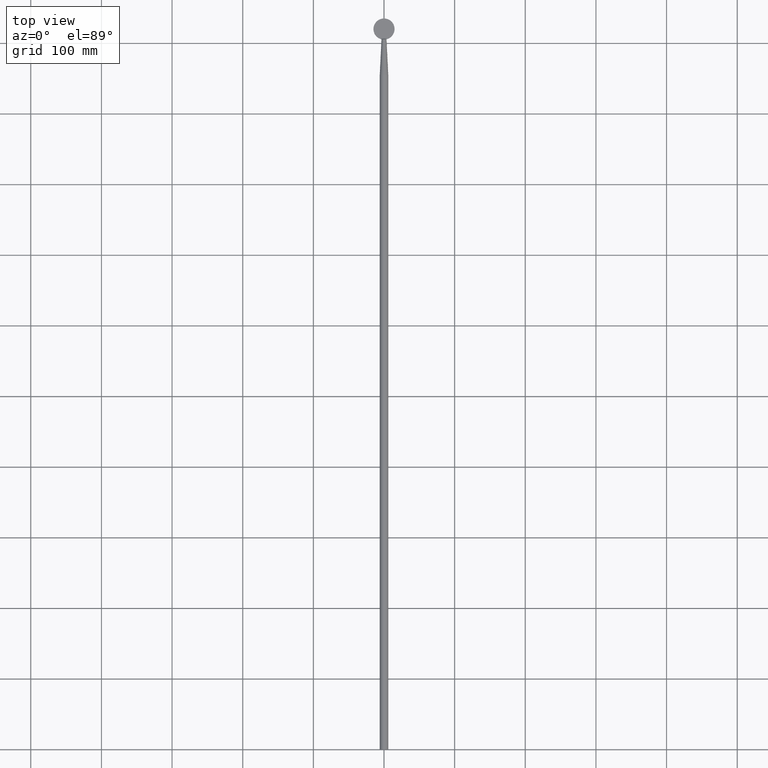
[diagram: clean part render]
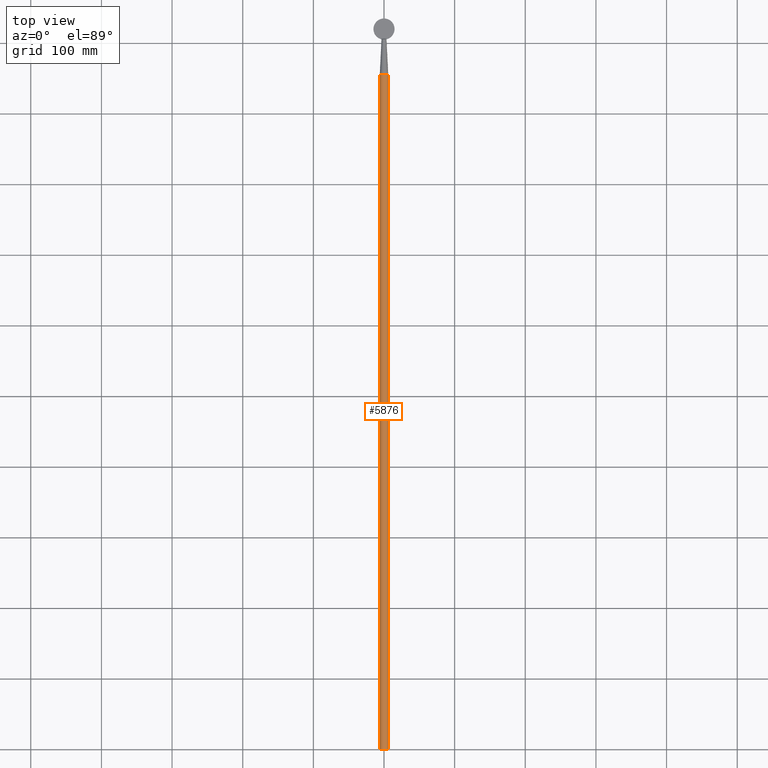
[diagram: same view with one face highlighted and labeled with its STEP entity id]
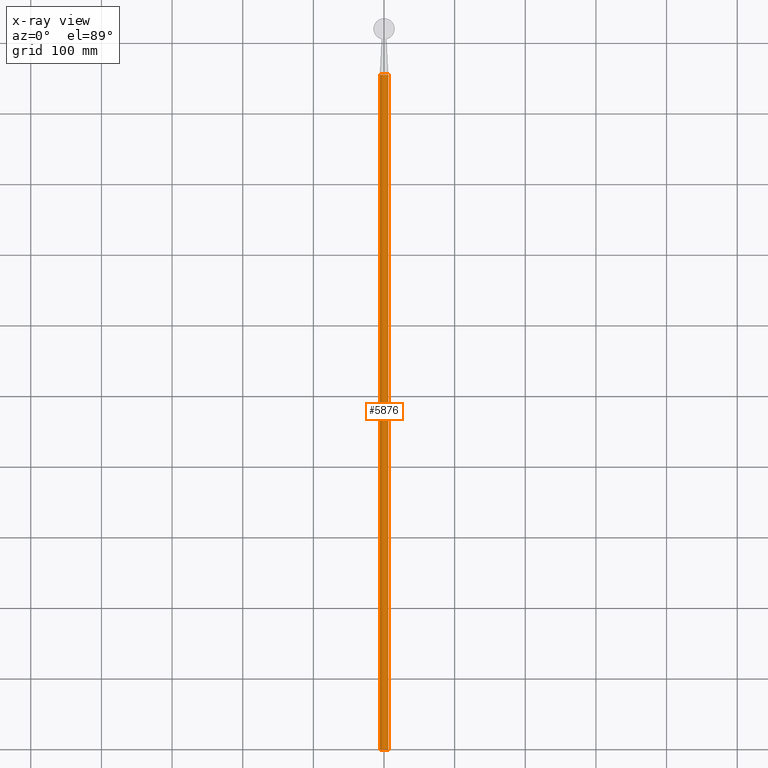
[diagram: x-ray of the same camera — body ghosted, the highlighted face saturated]
A machine part, top view. The second image highlights one B-rep face of the part: STEP entity #5876.
The next image is the same camera in x-ray: the body ghosted, the highlighted face saturated — about 0% of this face is hidden behind the body in this view.
In plain terms, the highlighted cylindrical surface (bore or boss wall) has radius 6 mm, axis along (-0, -1, -0).
Its self-contained STEP definition (entity closure, byte-faithful):
#269 = VERTEX_POINT ( 'NONE', #8607 ) ;
#700 = EDGE_LOOP ( 'NONE', ( #8321 ) ) ;
#1271 = EDGE_CURVE ( 'NONE', #269, #269, #5900, .T. ) ;
#2961 = CYLINDRICAL_SURFACE ( 'NONE', #5762, 6.000000000000000000 ) ;
#3065 = CARTESIAN_POINT ( 'NONE',  ( 0.000000000000000000, 1005.414047854185128, 0.000000000000000000 ) ) ;
#3812 = CARTESIAN_POINT ( 'NONE',  ( 0.000000000000000000, 0.000000000000000000, 0.000000000000000000 ) ) ;
#4160 = CARTESIAN_POINT ( 'NONE',  ( 0.000000000000000000, 955.0000000000000000, 0.000000000000000000 ) ) ;
#4405 = EDGE_LOOP ( 'NONE', ( #5898 ) ) ;
#4506 = CARTESIAN_POINT ( 'NONE',  ( 0.000000000000000000, 955.0000000000000000, -6.000000000000000000 ) ) ;
#4616 = VERTEX_POINT ( 'NONE', #4506 ) ;
#4885 = AXIS2_PLACEMENT_3D ( 'NONE', #3812, #6102, #6927 ) ;
#5762 = AXIS2_PLACEMENT_3D ( 'NONE', #3065, #7082, #8566 ) ;
#5876 = ADVANCED_FACE ( 'NONE', ( #9987, #7443 ), #2961, .T. ) ;
#5898 = ORIENTED_EDGE ( 'NONE', *, *, #1271, .F. ) ;
#5900 = CIRCLE ( 'NONE', #4885, 6.000000000000000000 ) ;
#6078 = CIRCLE ( 'NONE', #6448, 6.000000000000000000 ) ;
#6102 = DIRECTION ( 'NONE',  ( -0.000000000000000000, -1.000000000000000000, -0.000000000000000000 ) ) ;
#6448 = AXIS2_PLACEMENT_3D ( 'NONE', #4160, #7465, #9752 ) ;
#6927 = DIRECTION ( 'NONE',  ( 0.000000000000000000, 0.000000000000000000, -1.000000000000000000 ) ) ;
#7082 = DIRECTION ( 'NONE',  ( -0.000000000000000000, -1.000000000000000000, -0.000000000000000000 ) ) ;
#7085 = EDGE_CURVE ( 'NONE', #4616, #4616, #6078, .T. ) ;
#7443 = FACE_OUTER_BOUND ( 'NONE', #4405, .T. ) ;
#7465 = DIRECTION ( 'NONE',  ( -0.000000000000000000, -1.000000000000000000, -0.000000000000000000 ) ) ;
#8321 = ORIENTED_EDGE ( 'NONE', *, *, #7085, .T. ) ;
#8566 = DIRECTION ( 'NONE',  ( 0.000000000000000000, 0.000000000000000000, -1.000000000000000000 ) ) ;
#8607 = CARTESIAN_POINT ( 'NONE',  ( 0.000000000000000000, 0.000000000000000000, -6.000000000000000000 ) ) ;
#9752 = DIRECTION ( 'NONE',  ( 0.000000000000000000, 0.000000000000000000, -1.000000000000000000 ) ) ;
#9987 = FACE_OUTER_BOUND ( 'NONE', #700, .T. ) ;